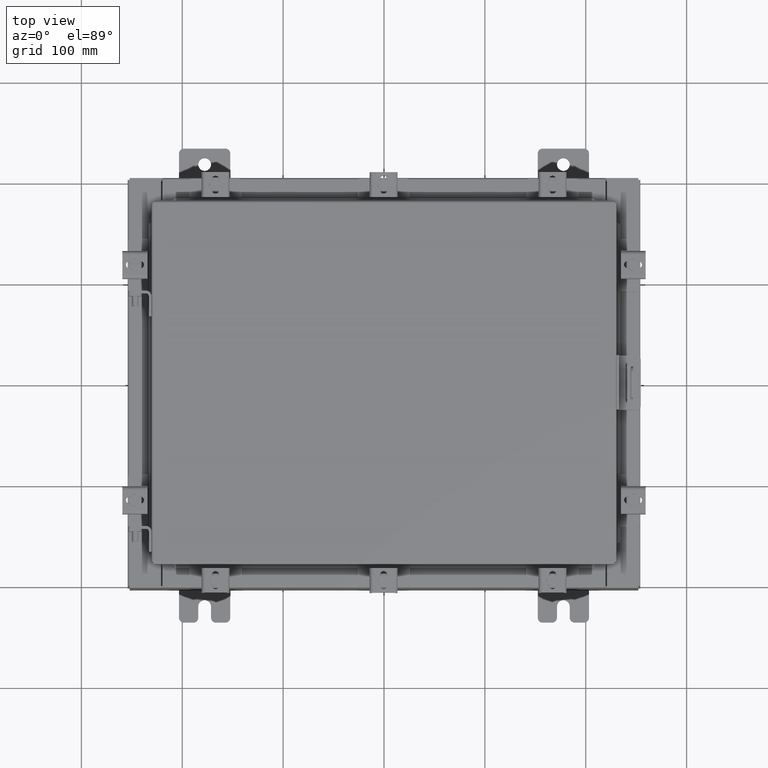
[diagram: clean part render]
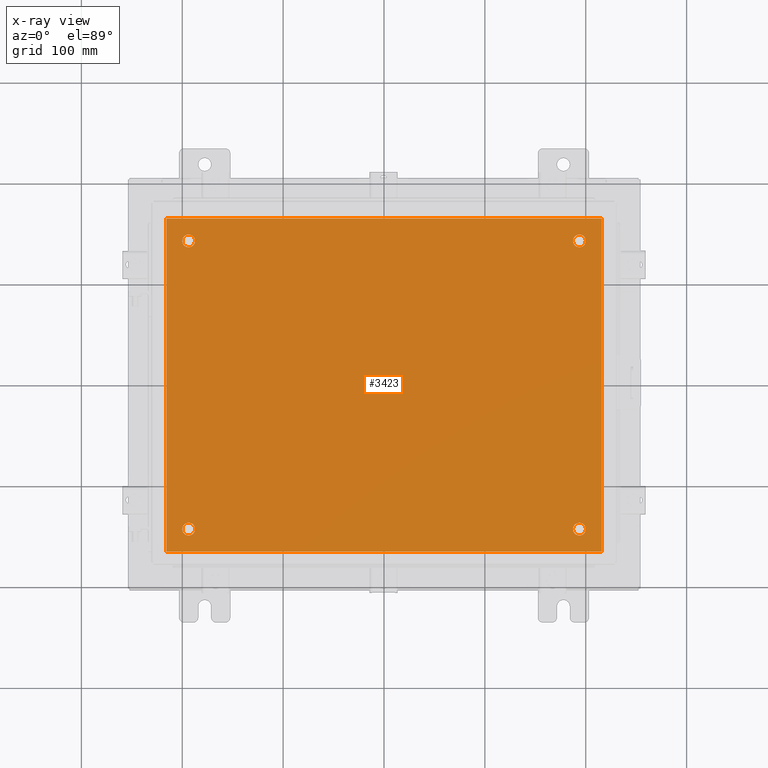
[diagram: x-ray — body ghosted, one internal face saturated and labeled with its STEP entity id]
A machine part, top view, then the same camera in x-ray: the body is ghosted and one INTERNAL B-rep face — a face not visible from any outside direction — is saturated and labeled: STEP entity #3423.
In plain terms, the highlighted planar face has unit normal (0, 0, -1).
Its self-contained STEP definition (entity closure, byte-faithful):
#841 = DIRECTION ( 'NONE',  ( -0.0000000000000000000, -0.0000000000000000000, 1.000000000000000000 ) ) ;
#919 = EDGE_CURVE ( 'NONE', #12571, #14872, #12530, .T. ) ;
#1111 = CIRCLE ( 'NONE', #11441, 0.2499999999999998100 ) ;
#1115 = ORIENTED_EDGE ( 'NONE', *, *, #2988, .T. ) ;
#1184 = DIRECTION ( 'NONE',  ( -1.000000000000000000, 0.0000000000000000000, 0.0000000000000000000 ) ) ;
#1294 = VERTEX_POINT ( 'NONE', #3704 ) ;
#1400 = DIRECTION ( 'NONE',  ( -0.0000000000000000000, -0.0000000000000000000, 1.000000000000000000 ) ) ;
#1636 = PLANE ( 'NONE',  #10578 ) ;
#1729 = EDGE_LOOP ( 'NONE', ( #17001, #13344 ) ) ;
#1799 = LINE ( 'NONE', #3364, #10108 ) ;
#2014 = DIRECTION ( 'NONE',  ( -0.0000000000000000000, -0.0000000000000000000, 1.000000000000000000 ) ) ;
#2323 = LINE ( 'NONE', #12357, #18551 ) ;
#2674 = DIRECTION ( 'NONE',  ( -0.0000000000000000000, -0.0000000000000000000, 1.000000000000000000 ) ) ;
#2760 = CIRCLE ( 'NONE', #8749, 0.2499999999999987000 ) ;
#2809 = CARTESIAN_POINT ( 'NONE',  ( -7.375000000000000000, 5.625000000000000000, -0.1039999999999999800 ) ) ;
#2889 = EDGE_CURVE ( 'NONE', #14275, #10315, #6803, .T. ) ;
#2988 = EDGE_CURVE ( 'NONE', #16688, #18437, #20114, .T. ) ;
#3364 = CARTESIAN_POINT ( 'NONE',  ( -8.499999999999996400, -6.500000000000000000, -0.1039999999999999800 ) ) ;
#3423 = ADVANCED_FACE ( 'NONE', ( #14543, #6687, #15041, #10371, #6215 ), #1636, .T. ) ;
#3644 = ORIENTED_EDGE ( 'NONE', *, *, #16402, .T. ) ;
#3678 = AXIS2_PLACEMENT_3D ( 'NONE', #8884, #19886, #10446 ) ;
#3704 = CARTESIAN_POINT ( 'NONE',  ( 7.874999999999998200, -5.625000000000000000, -0.1039999999999999800 ) ) ;
#3747 = ORIENTED_EDGE ( 'NONE', *, *, #9828, .F. ) ;
#3767 = ORIENTED_EDGE ( 'NONE', *, *, #7178, .F. ) ;
#4221 = EDGE_CURVE ( 'NONE', #13879, #18209, #14302, .T. ) ;
#4238 = DIRECTION ( 'NONE',  ( -1.000000000000000000, -0.0000000000000000000, -0.0000000000000000000 ) ) ;
#4557 = DIRECTION ( 'NONE',  ( 0.0000000000000000000, 1.000000000000000000, 0.0000000000000000000 ) ) ;
#4797 = ORIENTED_EDGE ( 'NONE', *, *, #919, .F. ) ;
#4977 = DIRECTION ( 'NONE',  ( -0.0000000000000000000, -0.0000000000000000000, 1.000000000000000000 ) ) ;
#5608 = CARTESIAN_POINT ( 'NONE',  ( -8.499999999999996400, -6.500000000000000000, -0.1039999999999999800 ) ) ;
#5740 = VECTOR ( 'NONE', #4238, 39.37007874015748100 ) ;
#5970 = AXIS2_PLACEMENT_3D ( 'NONE', #14372, #4977, #15929 ) ;
#6048 = VERTEX_POINT ( 'NONE', #12665 ) ;
#6111 = AXIS2_PLACEMENT_3D ( 'NONE', #12073, #2674, #13642 ) ;
#6215 = FACE_OUTER_BOUND ( 'NONE', #18923, .T. ) ;
#6400 = EDGE_CURVE ( 'NONE', #8704, #1294, #19388, .T. ) ;
#6687 = FACE_BOUND ( 'NONE', #1729, .T. ) ;
#6711 = EDGE_LOOP ( 'NONE', ( #10286, #1115 ) ) ;
#6803 = CIRCLE ( 'NONE', #6111, 0.2499999999999998100 ) ;
#7178 = EDGE_CURVE ( 'NONE', #14872, #11739, #2323, .T. ) ;
#7353 = DIRECTION ( 'NONE',  ( -0.0000000000000000000, -0.0000000000000000000, 1.000000000000000000 ) ) ;
#7457 = EDGE_CURVE ( 'NONE', #11739, #6048, #18288, .T. ) ;
#7894 = DIRECTION ( 'NONE',  ( -1.000000000000000000, 0.0000000000000000000, -0.0000000000000000000 ) ) ;
#8205 = CARTESIAN_POINT ( 'NONE',  ( -8.499999999999996400, 6.500000000000000000, -0.1039999999999999800 ) ) ;
#8704 = VERTEX_POINT ( 'NONE', #13834 ) ;
#8749 = AXIS2_PLACEMENT_3D ( 'NONE', #10206, #841, #11789 ) ;
#8804 = CARTESIAN_POINT ( 'NONE',  ( -7.874999999999999100, -5.625000000000000000, -0.1039999999999999800 ) ) ;
#8884 = CARTESIAN_POINT ( 'NONE',  ( -7.625000000000000000, 5.625000000000000000, -0.1039999999999999800 ) ) ;
#9828 = EDGE_CURVE ( 'NONE', #6048, #12571, #1799, .T. ) ;
#10079 = EDGE_CURVE ( 'NONE', #18437, #16688, #2760, .T. ) ;
#10108 = VECTOR ( 'NONE', #14345, 39.37007874015748100 ) ;
#10206 = CARTESIAN_POINT ( 'NONE',  ( 7.625000000000000000, 5.625000000000000000, -0.1039999999999999800 ) ) ;
#10286 = ORIENTED_EDGE ( 'NONE', *, *, #10079, .T. ) ;
#10314 = EDGE_LOOP ( 'NONE', ( #12303, #3644 ) ) ;
#10315 = VERTEX_POINT ( 'NONE', #8804 ) ;
#10371 = FACE_BOUND ( 'NONE', #17062, .T. ) ;
#10446 = DIRECTION ( 'NONE',  ( -1.000000000000000000, 0.0000000000000000000, 0.0000000000000000000 ) ) ;
#10549 = DIRECTION ( 'NONE',  ( -0.0000000000000000000, -0.0000000000000000000, 1.000000000000000000 ) ) ;
#10578 = AXIS2_PLACEMENT_3D ( 'NONE', #14154, #17339, #7894 ) ;
#10764 = CARTESIAN_POINT ( 'NONE',  ( 7.625000000000000000, 5.625000000000000000, -0.1039999999999999800 ) ) ;
#11214 = CARTESIAN_POINT ( 'NONE',  ( -7.874999999999999100, 5.625000000000000000, -0.1039999999999999800 ) ) ;
#11384 = CARTESIAN_POINT ( 'NONE',  ( -7.625000000000000000, 5.625000000000000000, -0.1039999999999999800 ) ) ;
#11441 = AXIS2_PLACEMENT_3D ( 'NONE', #11384, #2014, #12960 ) ;
#11622 = CARTESIAN_POINT ( 'NONE',  ( -7.375000000000000000, -5.625000000000000000, -0.1039999999999999800 ) ) ;
#11659 = CARTESIAN_POINT ( 'NONE',  ( -8.499999999999996400, -6.500000000000000000, -0.1039999999999999800 ) ) ;
#11736 = DIRECTION ( 'NONE',  ( 1.000000000000000000, 0.0000000000000000000, 0.0000000000000000000 ) ) ;
#11739 = VERTEX_POINT ( 'NONE', #14749 ) ;
#11748 = CARTESIAN_POINT ( 'NONE',  ( 7.874999999999998200, 5.625000000000000000, -0.1039999999999999800 ) ) ;
#11789 = DIRECTION ( 'NONE',  ( -1.000000000000000000, 0.0000000000000000000, 0.0000000000000000000 ) ) ;
#12073 = CARTESIAN_POINT ( 'NONE',  ( -7.625000000000000000, -5.625000000000000000, -0.1039999999999999800 ) ) ;
#12303 = ORIENTED_EDGE ( 'NONE', *, *, #2889, .T. ) ;
#12347 = DIRECTION ( 'NONE',  ( -1.000000000000000000, 0.0000000000000000000, 0.0000000000000000000 ) ) ;
#12357 = CARTESIAN_POINT ( 'NONE',  ( 8.500000000000003600, -6.500000000000000000, -0.1039999999999999800 ) ) ;
#12530 = LINE ( 'NONE', #11659, #16208 ) ;
#12571 = VERTEX_POINT ( 'NONE', #5608 ) ;
#12665 = CARTESIAN_POINT ( 'NONE',  ( -8.499999999999996400, 6.500000000000000000, -0.1039999999999999800 ) ) ;
#12960 = DIRECTION ( 'NONE',  ( -1.000000000000000000, 0.0000000000000000000, 0.0000000000000000000 ) ) ;
#13344 = ORIENTED_EDGE ( 'NONE', *, *, #6400, .T. ) ;
#13642 = DIRECTION ( 'NONE',  ( -1.000000000000000000, 0.0000000000000000000, 0.0000000000000000000 ) ) ;
#13834 = CARTESIAN_POINT ( 'NONE',  ( 7.375000000000000900, -5.625000000000000000, -0.1039999999999999800 ) ) ;
#13879 = VERTEX_POINT ( 'NONE', #2809 ) ;
#14154 = CARTESIAN_POINT ( 'NONE',  ( 0.0000000000000000000, 0.0000000000000000000, -0.1039999999999999800 ) ) ;
#14275 = VERTEX_POINT ( 'NONE', #11622 ) ;
#14302 = CIRCLE ( 'NONE', #3678, 0.2499999999999998100 ) ;
#14345 = DIRECTION ( 'NONE',  ( -0.0000000000000000000, -1.000000000000000000, -0.0000000000000000000 ) ) ;
#14372 = CARTESIAN_POINT ( 'NONE',  ( -7.625000000000000000, -5.625000000000000000, -0.1039999999999999800 ) ) ;
#14543 = FACE_BOUND ( 'NONE', #10314, .T. ) ;
#14613 = AXIS2_PLACEMENT_3D ( 'NONE', #16792, #7353, #18392 ) ;
#14749 = CARTESIAN_POINT ( 'NONE',  ( 8.500000000000003600, 6.500000000000000000, -0.1039999999999999800 ) ) ;
#14872 = VERTEX_POINT ( 'NONE', #18643 ) ;
#15041 = FACE_BOUND ( 'NONE', #6711, .T. ) ;
#15110 = EDGE_CURVE ( 'NONE', #18209, #13879, #1111, .T. ) ;
#15328 = ORIENTED_EDGE ( 'NONE', *, *, #7457, .F. ) ;
#15929 = DIRECTION ( 'NONE',  ( -1.000000000000000000, 0.0000000000000000000, 0.0000000000000000000 ) ) ;
#16208 = VECTOR ( 'NONE', #11736, 39.37007874015748100 ) ;
#16299 = CIRCLE ( 'NONE', #5970, 0.2499999999999998100 ) ;
#16402 = EDGE_CURVE ( 'NONE', #10315, #14275, #16299, .T. ) ;
#16420 = CARTESIAN_POINT ( 'NONE',  ( 7.375000000000000900, 5.625000000000000000, -0.1039999999999999800 ) ) ;
#16688 = VERTEX_POINT ( 'NONE', #16420 ) ;
#16776 = CIRCLE ( 'NONE', #19125, 0.2499999999999987000 ) ;
#16792 = CARTESIAN_POINT ( 'NONE',  ( 7.625000000000000000, -5.625000000000000000, -0.1039999999999999800 ) ) ;
#17001 = ORIENTED_EDGE ( 'NONE', *, *, #19076, .T. ) ;
#17062 = EDGE_LOOP ( 'NONE', ( #19524, #17681 ) ) ;
#17339 = DIRECTION ( 'NONE',  ( 0.0000000000000000000, 0.0000000000000000000, -1.000000000000000000 ) ) ;
#17681 = ORIENTED_EDGE ( 'NONE', *, *, #15110, .T. ) ;
#18209 = VERTEX_POINT ( 'NONE', #11214 ) ;
#18288 = LINE ( 'NONE', #8205, #5740 ) ;
#18392 = DIRECTION ( 'NONE',  ( -1.000000000000000000, 0.0000000000000000000, 0.0000000000000000000 ) ) ;
#18437 = VERTEX_POINT ( 'NONE', #11748 ) ;
#18551 = VECTOR ( 'NONE', #4557, 39.37007874015748100 ) ;
#18643 = CARTESIAN_POINT ( 'NONE',  ( 8.500000000000003600, -6.500000000000000000, -0.1039999999999999800 ) ) ;
#18770 = AXIS2_PLACEMENT_3D ( 'NONE', #10764, #1400, #12347 ) ;
#18923 = EDGE_LOOP ( 'NONE', ( #3767, #4797, #3747, #15328 ) ) ;
#19076 = EDGE_CURVE ( 'NONE', #1294, #8704, #16776, .T. ) ;
#19125 = AXIS2_PLACEMENT_3D ( 'NONE', #20009, #10549, #1184 ) ;
#19388 = CIRCLE ( 'NONE', #14613, 0.2499999999999987000 ) ;
#19524 = ORIENTED_EDGE ( 'NONE', *, *, #4221, .T. ) ;
#19886 = DIRECTION ( 'NONE',  ( -0.0000000000000000000, -0.0000000000000000000, 1.000000000000000000 ) ) ;
#20009 = CARTESIAN_POINT ( 'NONE',  ( 7.625000000000000000, -5.625000000000000000, -0.1039999999999999800 ) ) ;
#20114 = CIRCLE ( 'NONE', #18770, 0.2499999999999987000 ) ;